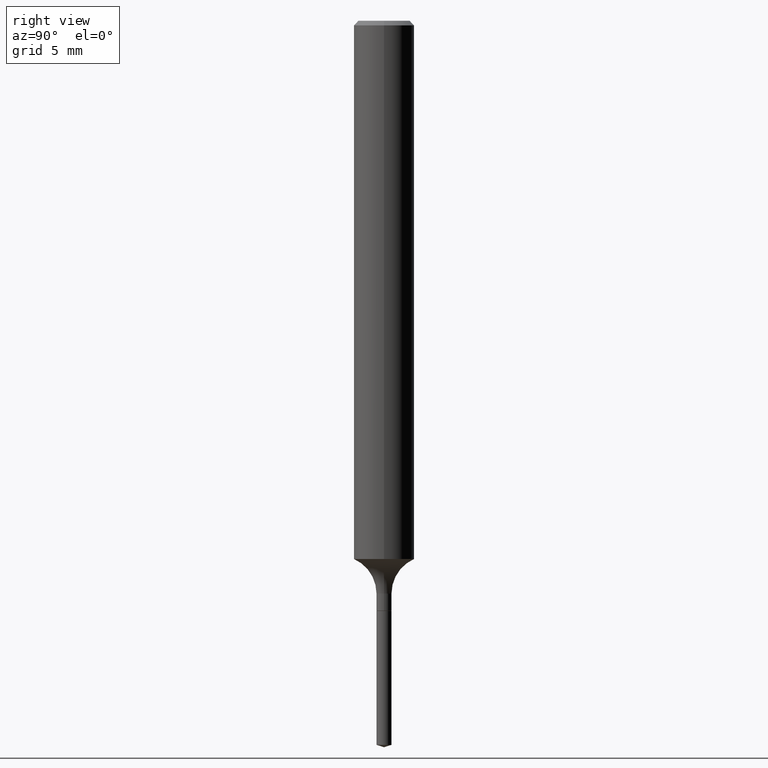
[diagram: clean part render]
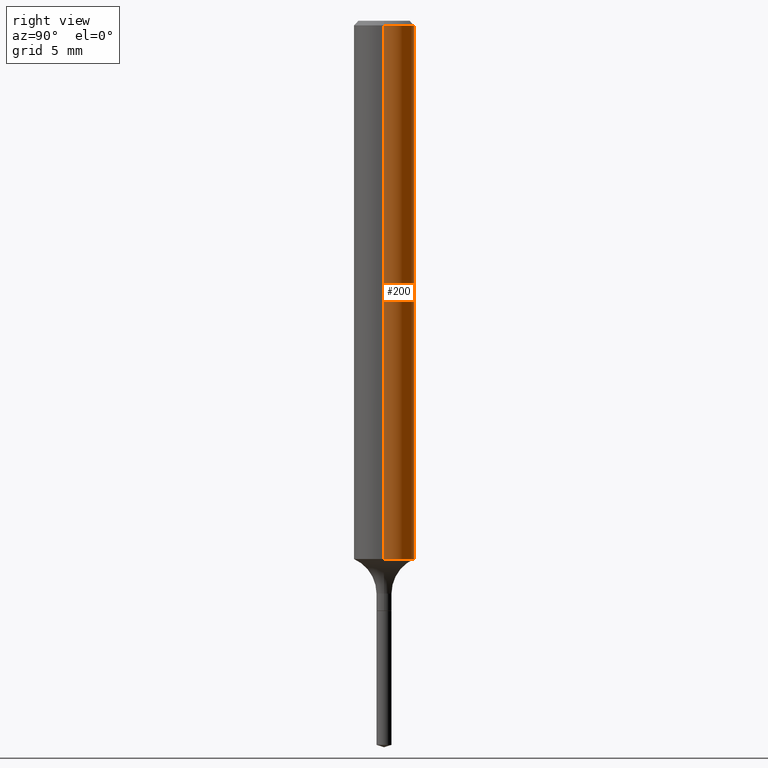
[diagram: same view with one face highlighted and labeled with its STEP entity id]
A machine part, right view. The second image highlights one B-rep face of the part: STEP entity #200.
In plain terms, the highlighted cylindrical surface (edge-blend (fillet) strip) has radius 1.5875 mm, axis along (-0, 0, 1).
Its self-contained STEP definition (entity closure, byte-faithful):
#12 = FACE_OUTER_BOUND ( 'NONE', #484, .T. ) ;
#15 = AXIS2_PLACEMENT_3D ( 'NONE', #436, #53, #349 ) ;
#23 = ORIENTED_EDGE ( 'NONE', *, *, #383, .F. ) ;
#53 = DIRECTION ( 'NONE',  ( -2.445468806185136597E-29, 3.491481338843145583E-15, 1.000000000000000000 ) ) ;
#64 = LINE ( 'NONE', #362, #267 ) ;
#98 = CARTESIAN_POINT ( 'NONE',  ( 2.717571862183751138E-29, -3.879972388027042486E-15, -1.111268258793735253 ) ) ;
#105 = DIRECTION ( 'NONE',  ( -2.445468806185136597E-29, 3.491481338843145583E-15, 1.000000000000000000 ) ) ;
#135 = VERTEX_POINT ( 'NONE', #458 ) ;
#152 = DIRECTION ( 'NONE',  ( 1.000000000000000000, -6.982962677686266711E-15, 0.000000000000000000 ) ) ;
#168 = CIRCLE ( 'NONE', #279, 0.06250000000000000000 ) ;
#178 = LINE ( 'NONE', #319, #203 ) ;
#185 = CIRCLE ( 'NONE', #274, 0.06250000000000012490 ) ;
#186 = VERTEX_POINT ( 'NONE', #352 ) ;
#188 = VERTEX_POINT ( 'NONE', #243 ) ;
#190 = EDGE_CURVE ( 'NONE', #188, #490, #178, .T. ) ;
#192 = DIRECTION ( 'NONE',  ( -2.445468806185136597E-29, 3.491481338843145583E-15, 1.000000000000000000 ) ) ;
#196 = DIRECTION ( 'NONE',  ( -2.445468806185136877E-29, 3.491481338843145188E-15, 1.000000000000000000 ) ) ;
#200 = ADVANCED_FACE ( 'NONE', ( #12 ), #474, .T. ) ;
#203 = VECTOR ( 'NONE', #282, 39.37007874015748143 ) ;
#212 = ORIENTED_EDGE ( 'NONE', *, *, #190, .F. ) ;
#243 = CARTESIAN_POINT ( 'NONE',  ( 0.06250000000000022204, -4.316407555382434945E-15, -1.111268258793735253 ) ) ;
#246 = ORIENTED_EDGE ( 'NONE', *, *, #339, .T. ) ;
#267 = VECTOR ( 'NONE', #196, 39.37007874015748143 ) ;
#274 = AXIS2_PLACEMENT_3D ( 'NONE', #98, #192, #328 ) ;
#279 = AXIS2_PLACEMENT_3D ( 'NONE', #448, #105, #152 ) ;
#282 = DIRECTION ( 'NONE',  ( -2.445468806185136877E-29, 3.491481338843145188E-15, 1.000000000000000000 ) ) ;
#296 = EDGE_CURVE ( 'NONE', #188, #186, #185, .T. ) ;
#319 = CARTESIAN_POINT ( 'NONE',  ( 0.06250000000000006939, -4.364351673553921624E-16, 3.047610484872463374E-30 ) ) ;
#328 = DIRECTION ( 'NONE',  ( 1.000000000000000000, -6.982962677686264344E-15, 0.000000000000000000 ) ) ;
#339 = EDGE_CURVE ( 'NONE', #186, #135, #64, .T. ) ;
#349 = DIRECTION ( 'NONE',  ( 1.000000000000000000, -6.982962677686266711E-15, 4.876176775795935793E-29 ) ) ;
#350 = ORIENTED_EDGE ( 'NONE', *, *, #296, .T. ) ;
#352 = CARTESIAN_POINT ( 'NONE',  ( -0.06250000000000022204, -3.435883178176978292E-15, -1.111268258793735253 ) ) ;
#362 = CARTESIAN_POINT ( 'NONE',  ( -0.06250000000000006939, 4.440892098500631092E-16, -3.074334431409319267E-30 ) ) ;
#373 = CARTESIAN_POINT ( 'NONE',  ( 0.06250000000000000000, -4.691678049070464390E-16, -0.009375000000000065573 ) ) ;
#383 = EDGE_CURVE ( 'NONE', #490, #135, #168, .T. ) ;
#436 = CARTESIAN_POINT ( 'NONE',  ( 0.000000000000000000, 0.000000000000000000, 0.000000000000000000 ) ) ;
#448 = CARTESIAN_POINT ( 'NONE',  ( 2.292627005798581499E-31, -3.273263755165472033E-17, -0.009375000000000065573 ) ) ;
#458 = CARTESIAN_POINT ( 'NONE',  ( -0.06250000000000000000, -1.512263302939284533E-15, -0.009375000000000065573 ) ) ;
#474 = CYLINDRICAL_SURFACE ( 'NONE', #15, 0.06250000000000006939 ) ;
#484 = EDGE_LOOP ( 'NONE', ( #350, #246, #23, #212 ) ) ;
#490 = VERTEX_POINT ( 'NONE', #373 ) ;